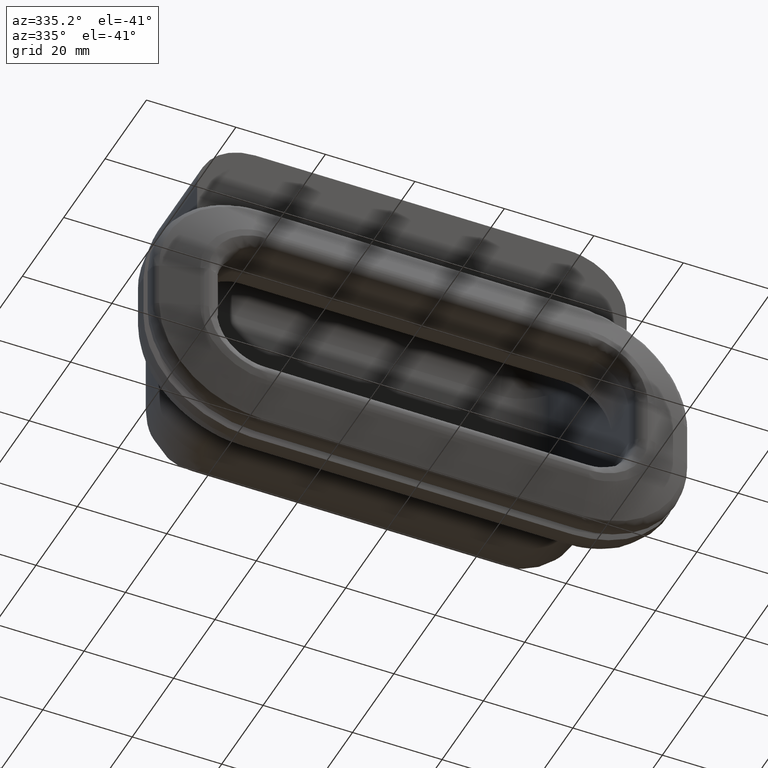
[diagram: clean part render]
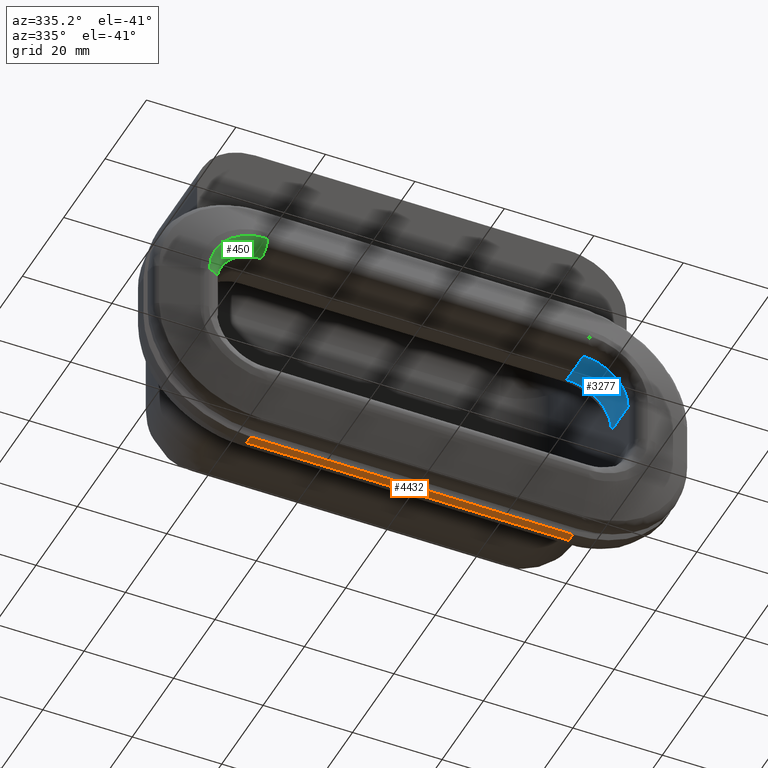
[diagram: same view with three faces highlighted in distinct colors, each labeled with its STEP entity id]
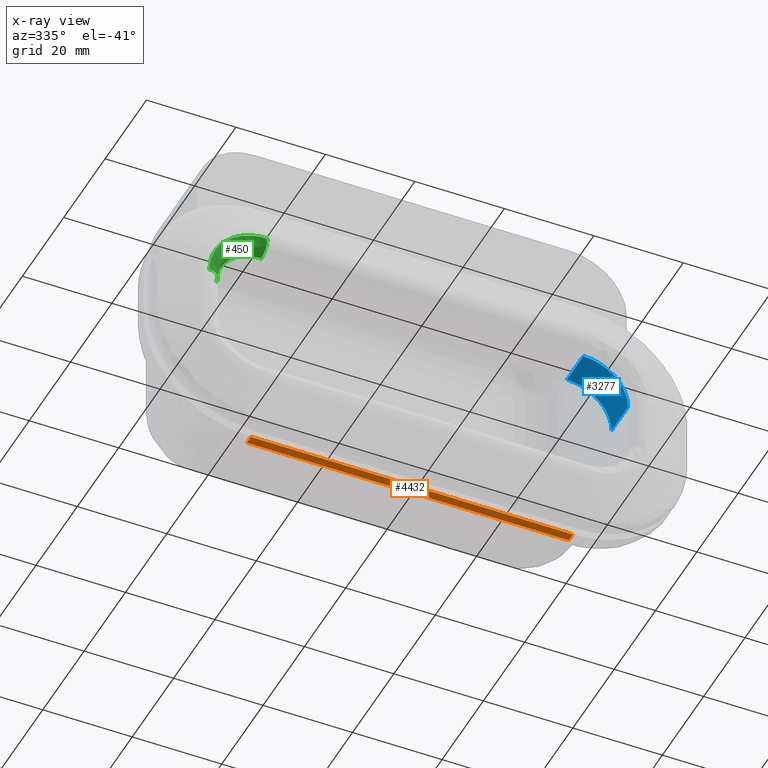
[diagram: x-ray of the same camera — body ghosted, the three highlighted faces saturated]
A machine part, auxiliary view with three faces highlighted in distinct colors.
The next image is the same camera in x-ray (body ghosted, the three faces saturated) — at least one of them is partly hidden behind the body in this view.
Their STEP definitions:

[orange] entity #4432 — the highlighted face is a freeform B-spline surface patch.
#2531=CARTESIAN_POINT('',(36.0,10.0,-29.0));
#2532=VERTEX_POINT('',#2531);
#2678=CARTESIAN_POINT('',(-36.0,10.0,-29.0));
#2679=VERTEX_POINT('',#2678);
#2701=CARTESIAN_POINT('',(-36.0,10.0,-29.0));
#2702=CARTESIAN_POINT('',(36.0,10.0,-29.0));
#2703=QUASI_UNIFORM_CURVE('',1,(#2701,#2702),.UNSPECIFIED.,.F.,.U.);
#2704=EDGE_CURVE('',#2679,#2532,#2703,.T.);
#3933=CARTESIAN_POINT('',(-36.0,8.0,-29.0));
#3934=VERTEX_POINT('',#3933);
#3948=CARTESIAN_POINT('',(36.0,8.0,-29.0));
#3949=VERTEX_POINT('',#3948);
#3950=CARTESIAN_POINT('',(-36.0,8.0,-29.0));
#3951=CARTESIAN_POINT('',(36.0,8.0,-29.0));
#3952=QUASI_UNIFORM_CURVE('',1,(#3950,#3951),.UNSPECIFIED.,.F.,.U.);
#3953=EDGE_CURVE('',#3934,#3949,#3952,.T.);
#4408=CARTESIAN_POINT('',(-36.0,10.0,-29.0));
#4409=CARTESIAN_POINT('',(-36.0,8.0,-29.0));
#4410=QUASI_UNIFORM_CURVE('',1,(#4408,#4409),.UNSPECIFIED.,.F.,.U.);
#4411=EDGE_CURVE('',#2679,#3934,#4410,.T.);
#4417=CARTESIAN_POINT('',(-39.596399860450028,7.900100003876387,-29.0));
#4418=CARTESIAN_POINT('',(39.596401791640517,7.900100003876387,-29.0));
#4419=CARTESIAN_POINT('',(-39.596399860450028,10.099900049767790,-29.0));
#4420=CARTESIAN_POINT('',(39.596401791640517,10.099900049767790,-29.0));
#4421=B_SPLINE_SURFACE_WITH_KNOTS('',1,1,((#4417,#4419),(#4418,#4420)),.UNSPECIFIED.,.F.,.F.,.U.,(2,2),(2,2),(0.0,79.192801652090537),(0.0,2.199800045891404),.UNSPECIFIED.);
#4422=ORIENTED_EDGE('',*,*,#4411,.F.);
#4423=ORIENTED_EDGE('',*,*,#2704,.T.);
#4424=CARTESIAN_POINT('',(36.0,10.0,-29.0));
#4425=CARTESIAN_POINT('',(36.0,8.0,-29.0));
#4426=QUASI_UNIFORM_CURVE('',1,(#4424,#4425),.UNSPECIFIED.,.F.,.U.);
#4427=EDGE_CURVE('',#2532,#3949,#4426,.T.);
#4428=ORIENTED_EDGE('',*,*,#4427,.T.);
#4429=ORIENTED_EDGE('',*,*,#3953,.F.);
#4430=EDGE_LOOP('',(#4422,#4423,#4428,#4429));
#4431=FACE_OUTER_BOUND('',#4430,.T.);
#4432=ADVANCED_FACE('',(#4431),#4421,.F.);

[blue] entity #3277 — the highlighted face is a freeform B-spline surface patch.
#249=CARTESIAN_POINT('',(46.0,3.0,5.000000000000080));
#250=VERTEX_POINT('',#249);
#342=CARTESIAN_POINT('',(36.0,3.0,15.0));
#343=VERTEX_POINT('',#342);
#357=CARTESIAN_POINT('',(46.0,3.0,5.000000000000080));
#358=CARTESIAN_POINT('',(46.000000000000007,3.0,15.000000000000080));
#359=CARTESIAN_POINT('',(36.0,3.0,15.000000000000080));
#367=(BOUNDED_CURVE()B_SPLINE_CURVE(2,(#357,#358,#359),.UNSPECIFIED.,.F.,.U.)CURVE()GEOMETRIC_REPRESENTATION_ITEM()QUASI_UNIFORM_CURVE()RATIONAL_B_SPLINE_CURVE((1.0,0.707106781186548,1.0))REPRESENTATION_ITEM(''));
#368=EDGE_CURVE('',#250,#343,#367,.T.);
#1537=CARTESIAN_POINT('',(46.0,11.0,5.000000000000080));
#1538=VERTEX_POINT('',#1537);
#1565=CARTESIAN_POINT('',(36.0,11.0,15.0));
#1566=VERTEX_POINT('',#1565);
#1567=CARTESIAN_POINT('',(36.0,11.0,15.000000000000080));
#1568=CARTESIAN_POINT('',(46.000000000000007,11.0,15.000000000000080));
#1569=CARTESIAN_POINT('',(46.0,11.0,5.000000000000080));
#1577=(BOUNDED_CURVE()B_SPLINE_CURVE(2,(#1567,#1568,#1569),.UNSPECIFIED.,.F.,.U.)CURVE()GEOMETRIC_REPRESENTATION_ITEM()QUASI_UNIFORM_CURVE()RATIONAL_B_SPLINE_CURVE((1.0,0.707106781186548,1.0))REPRESENTATION_ITEM(''));
#1578=EDGE_CURVE('',#1566,#1538,#1577,.T.);
#3249=CARTESIAN_POINT('',(45.999619230641713,2.799999999999999,4.912734645016349));
#3250=CARTESIAN_POINT('',(45.999619230641713,11.205000000000000,4.912734645016349));
#3251=CARTESIAN_POINT('',(46.093199866795459,2.799999999999999,15.636013420117605));
#3252=CARTESIAN_POINT('',(46.093199866795459,11.205000000000002,15.636013420117605));
#3253=CARTESIAN_POINT('',(35.389514604651417,2.799999999999999,14.981347984218750));
#3254=CARTESIAN_POINT('',(35.389514604651417,11.205000000000000,14.981347984218750));
#3262=(BOUNDED_SURFACE()B_SPLINE_SURFACE(1,2,((#3249,#3251,#3253),(#3250,#3252,#3254)),.UNSPECIFIED.,.F.,.F.,.U.)B_SPLINE_SURFACE_WITH_KNOTS((2,2),(3,3),(0.0,8.405000000000003),(0.0,17.392494998437339),.UNSPECIFIED.)GEOMETRIC_REPRESENTATION_ITEM()RATIONAL_B_SPLINE_SURFACE(((1.0,0.681998360062499,1.0),(1.0,0.681998360062499,1.0)))REPRESENTATION_ITEM('')SURFACE());
#3263=CARTESIAN_POINT('',(46.0,3.0,5.000000000000080));
#3264=CARTESIAN_POINT('',(46.0,11.0,5.000000000000080));
#3265=QUASI_UNIFORM_CURVE('',1,(#3263,#3264),.UNSPECIFIED.,.F.,.U.);
#3266=EDGE_CURVE('',#250,#1538,#3265,.T.);
#3267=ORIENTED_EDGE('',*,*,#3266,.F.);
#3268=ORIENTED_EDGE('',*,*,#368,.T.);
#3269=CARTESIAN_POINT('',(36.0,11.0,15.0));
#3270=CARTESIAN_POINT('',(36.0,3.0,15.0));
#3271=QUASI_UNIFORM_CURVE('',1,(#3269,#3270),.UNSPECIFIED.,.F.,.U.);
#3272=EDGE_CURVE('',#1566,#343,#3271,.T.);
#3273=ORIENTED_EDGE('',*,*,#3272,.F.);
#3274=ORIENTED_EDGE('',*,*,#1578,.T.);
#3275=EDGE_LOOP('',(#3267,#3268,#3273,#3274));
#3276=FACE_OUTER_BOUND('',#3275,.T.);
#3277=ADVANCED_FACE('',(#3276),#3262,.F.);

[green] entity #450 — the highlighted face is a freeform B-spline surface patch.
#292=CARTESIAN_POINT('',(-46.0,3.0,5.000000000000080));
#293=VERTEX_POINT('',#292);
#294=CARTESIAN_POINT('',(-49.0,0.0,5.000000000000080));
#295=VERTEX_POINT('',#294);
#296=CARTESIAN_POINT('',(-46.0,3.0,5.000000000000080));
#297=CARTESIAN_POINT('',(-46.000000000000007,0.0,5.000000000000081));
#298=CARTESIAN_POINT('',(-49.0,0.0,5.000000000000080));
#306=(BOUNDED_CURVE()B_SPLINE_CURVE(2,(#296,#297,#298),.UNSPECIFIED.,.F.,.U.)CURVE()GEOMETRIC_REPRESENTATION_ITEM()QUASI_UNIFORM_CURVE()RATIONAL_B_SPLINE_CURVE((1.0,0.707106781186548,1.0))REPRESENTATION_ITEM(''));
#307=EDGE_CURVE('',#293,#295,#306,.T.);
#387=CARTESIAN_POINT('',(-45.982907255618727,3.208611433772894,4.302250990754623));
#388=CARTESIAN_POINT('',(-46.785219802665672,3.208611433772895,15.781180578702273));
#389=CARTESIAN_POINT('',(-35.305990485889829,3.208611433772894,14.983167921482359));
#390=CARTESIAN_POINT('',(-45.743617568030764,-0.232611556272030,4.318975992616500));
#391=CARTESIAN_POINT('',(-46.526698731492267,-0.232611556272029,15.522756327484766));
#392=CARTESIAN_POINT('',(-35.322625852277831,-0.232611556272029,14.743871985749291));
#393=CARTESIAN_POINT('',(-49.176465659870921,0.007261910941886,4.079039239360229));
#394=CARTESIAN_POINT('',(-50.235440110294427,0.007261910941886,19.230108727914146));
#395=CARTESIAN_POINT('',(-35.083975008868343,0.007261910941886,18.176809713432927));
#403=(BOUNDED_SURFACE()B_SPLINE_SURFACE(2,2,((#387,#390,#393),(#388,#391,#394),(#389,#392,#395)),.UNSPECIFIED.,.F.,.F.,.U.)B_SPLINE_SURFACE_WITH_KNOTS((3,3),(3,3),(0.0,24.070983094173730),(0.0,5.467121992518763),.UNSPECIFIED.)GEOMETRIC_REPRESENTATION_ITEM()RATIONAL_B_SPLINE_SURFACE(((0.840028192231252,0.551247454983060,0.840028192231252),(0.552780358918846,0.362748261114015,0.552780358918846),(0.844707129227383,0.554317890160113,0.844707129227383)))REPRESENTATION_ITEM('')SURFACE());
#404=CARTESIAN_POINT('',(-36.0,3.0,15.0));
#405=VERTEX_POINT('',#404);
#406=CARTESIAN_POINT('',(-36.0,0.0,18.0));
#407=VERTEX_POINT('',#406);
#408=CARTESIAN_POINT('',(-36.0,3.0,15.0));
#409=CARTESIAN_POINT('',(-36.0,0.0,14.999999999999995));
#410=CARTESIAN_POINT('',(-36.0,0.0,18.0));
#418=(BOUNDED_CURVE()B_SPLINE_CURVE(2,(#408,#409,#410),.UNSPECIFIED.,.F.,.U.)CURVE()GEOMETRIC_REPRESENTATION_ITEM()QUASI_UNIFORM_CURVE()RATIONAL_B_SPLINE_CURVE((1.0,0.707106781186548,1.0))REPRESENTATION_ITEM(''));
#419=EDGE_CURVE('',#405,#407,#418,.T.);
#420=ORIENTED_EDGE('',*,*,#419,.T.);
#421=CARTESIAN_POINT('',(-48.999999999999993,0.0,5.000000000000080));
#422=CARTESIAN_POINT('',(-48.999999999999986,0.0,18.000000000000078));
#423=CARTESIAN_POINT('',(-36.0,0.0,18.000000000000082));
#431=(BOUNDED_CURVE()B_SPLINE_CURVE(2,(#421,#422,#423),.UNSPECIFIED.,.F.,.U.)CURVE()GEOMETRIC_REPRESENTATION_ITEM()QUASI_UNIFORM_CURVE()RATIONAL_B_SPLINE_CURVE((1.0,0.707106781186547,1.0))REPRESENTATION_ITEM(''));
#432=EDGE_CURVE('',#295,#407,#431,.T.);
#433=ORIENTED_EDGE('',*,*,#432,.F.);
#434=ORIENTED_EDGE('',*,*,#307,.F.);
#435=CARTESIAN_POINT('',(-36.0,3.0,15.000000000000080));
#436=CARTESIAN_POINT('',(-46.000000000000007,3.0,15.000000000000080));
#437=CARTESIAN_POINT('',(-46.0,3.0,5.000000000000080));
#445=(BOUNDED_CURVE()B_SPLINE_CURVE(2,(#435,#436,#437),.UNSPECIFIED.,.F.,.U.)CURVE()GEOMETRIC_REPRESENTATION_ITEM()QUASI_UNIFORM_CURVE()RATIONAL_B_SPLINE_CURVE((1.0,0.707106781186548,1.0))REPRESENTATION_ITEM(''));
#446=EDGE_CURVE('',#405,#293,#445,.T.);
#447=ORIENTED_EDGE('',*,*,#446,.F.);
#448=EDGE_LOOP('',(#420,#433,#434,#447));
#449=FACE_OUTER_BOUND('',#448,.T.);
#450=ADVANCED_FACE('',(#449),#403,.T.);